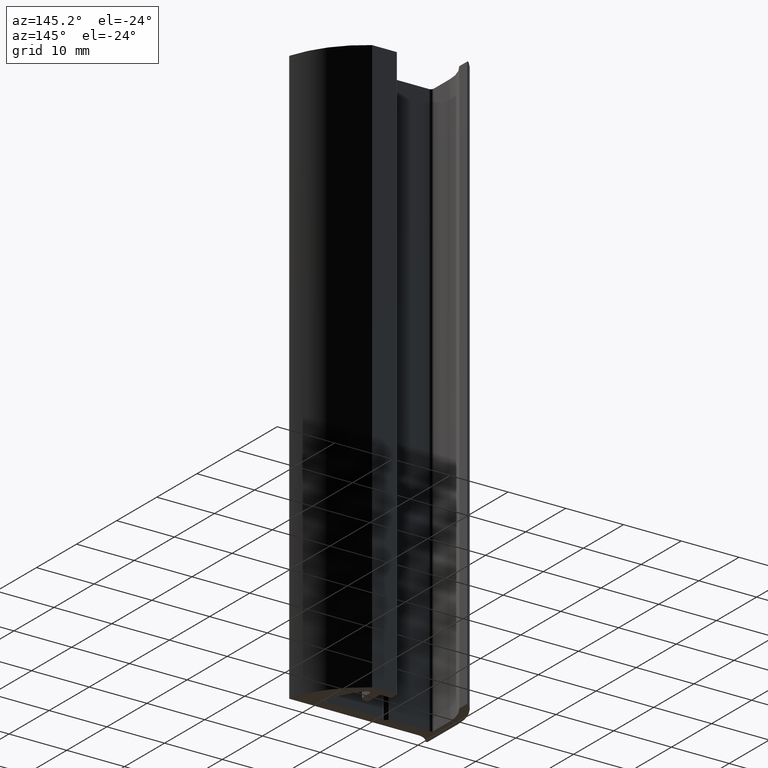
[diagram: clean part render]
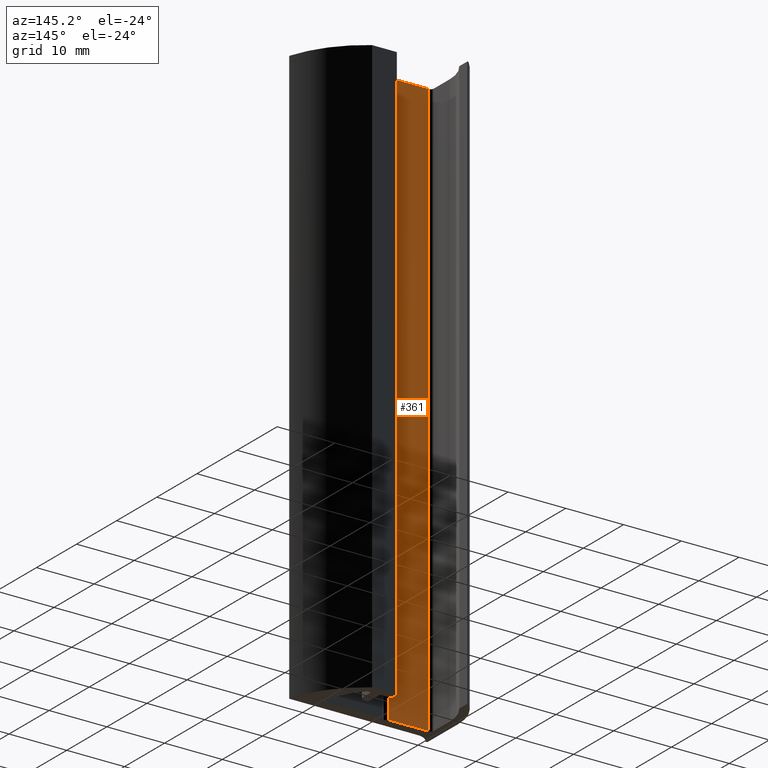
[diagram: same view with one face highlighted and labeled with its STEP entity id]
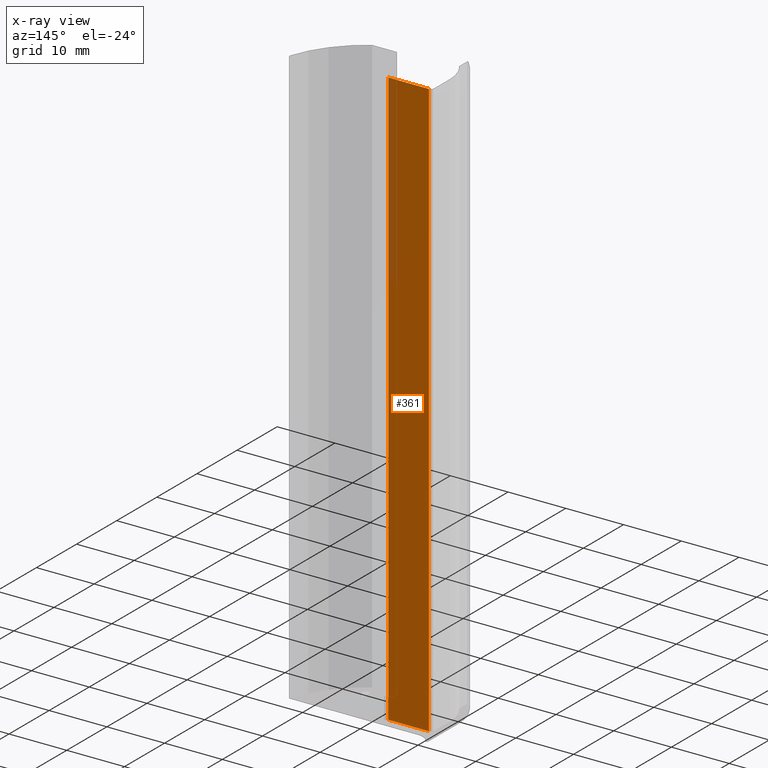
[diagram: x-ray of the same camera — body ghosted, the highlighted face saturated]
A machine part, auxiliary view. The second image highlights one B-rep face of the part: STEP entity #361.
The next image is the same camera in x-ray: the body ghosted, the highlighted face saturated — about 7% of this face is hidden behind the body in this view.
In plain terms, the highlighted planar face has unit normal (0, 1, 0).
Its self-contained STEP definition (entity closure, byte-faithful):
#305=CARTESIAN_POINT('',(6.500000000020691,2.000000000021259,0.0));
#306=VERTEX_POINT('',#305);
#313=CARTESIAN_POINT('',(6.500000000020691,2.000000000021259,100.0));
#314=VERTEX_POINT('',#313);
#315=CARTESIAN_POINT('',(6.500000000020691,2.000000000021259,0.0));
#316=DIRECTION('',(0.0,0.0,1.0));
#317=VECTOR('',#316,100.0);
#318=LINE('',#315,#317);
#319=EDGE_CURVE('',#306,#314,#318,.T.);
#331=CARTESIAN_POINT('',(6.500000000020691,2.000000000021259,0.0));
#332=DIRECTION('',(0.0,1.0,0.0));
#333=DIRECTION('',(-1.0,0.0,0.0));
#334=AXIS2_PLACEMENT_3D('',#331,#332,#333);
#335=PLANE('',#334);
#336=CARTESIAN_POINT('',(-0.499999999979309,2.000000000021259,0.0));
#337=VERTEX_POINT('',#336);
#338=CARTESIAN_POINT('',(6.500000000020691,2.000000000021259,0.0));
#339=DIRECTION('',(-1.0,0.0,0.0));
#340=VECTOR('',#339,7.0);
#341=LINE('',#338,#340);
#342=EDGE_CURVE('',#306,#337,#341,.T.);
#343=ORIENTED_EDGE('',*,*,#342,.T.);
#344=CARTESIAN_POINT('',(-0.499999999979309,2.000000000021259,100.0));
#345=VERTEX_POINT('',#344);
#346=CARTESIAN_POINT('',(-0.499999999979309,2.000000000021259,0.0));
#347=DIRECTION('',(0.0,0.0,1.0));
#348=VECTOR('',#347,100.0);
#349=LINE('',#346,#348);
#350=EDGE_CURVE('',#337,#345,#349,.T.);
#351=ORIENTED_EDGE('',*,*,#350,.T.);
#352=CARTESIAN_POINT('',(6.500000000020691,2.000000000021259,100.0));
#353=DIRECTION('',(-1.0,0.0,0.0));
#354=VECTOR('',#353,7.0);
#355=LINE('',#352,#354);
#356=EDGE_CURVE('',#314,#345,#355,.T.);
#357=ORIENTED_EDGE('',*,*,#356,.F.);
#358=ORIENTED_EDGE('',*,*,#319,.F.);
#359=EDGE_LOOP('',(#343,#351,#357,#358));
#360=FACE_OUTER_BOUND('',#359,.T.);
#361=ADVANCED_FACE('',(#360),#335,.T.);